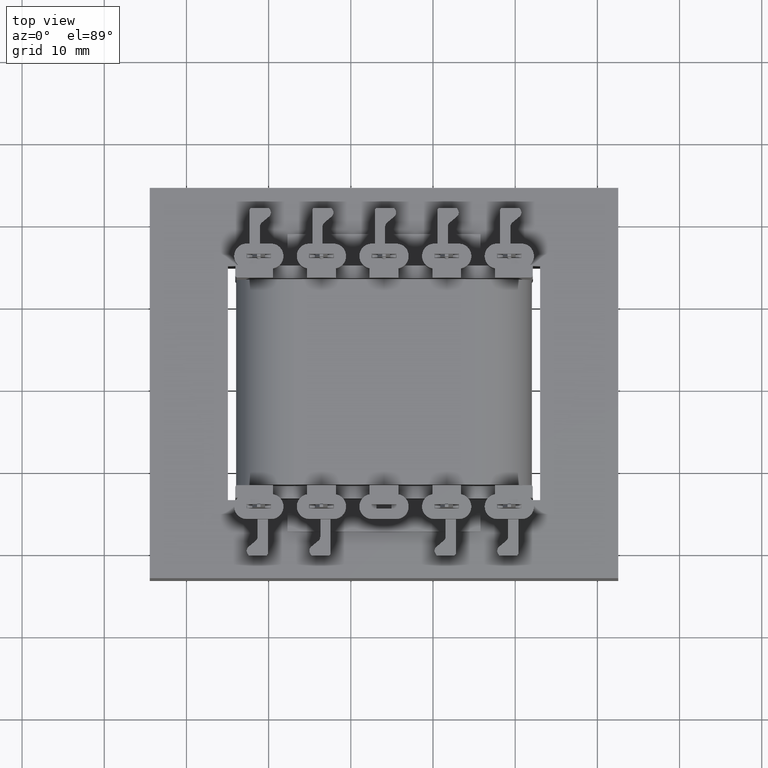
[diagram: clean part render]
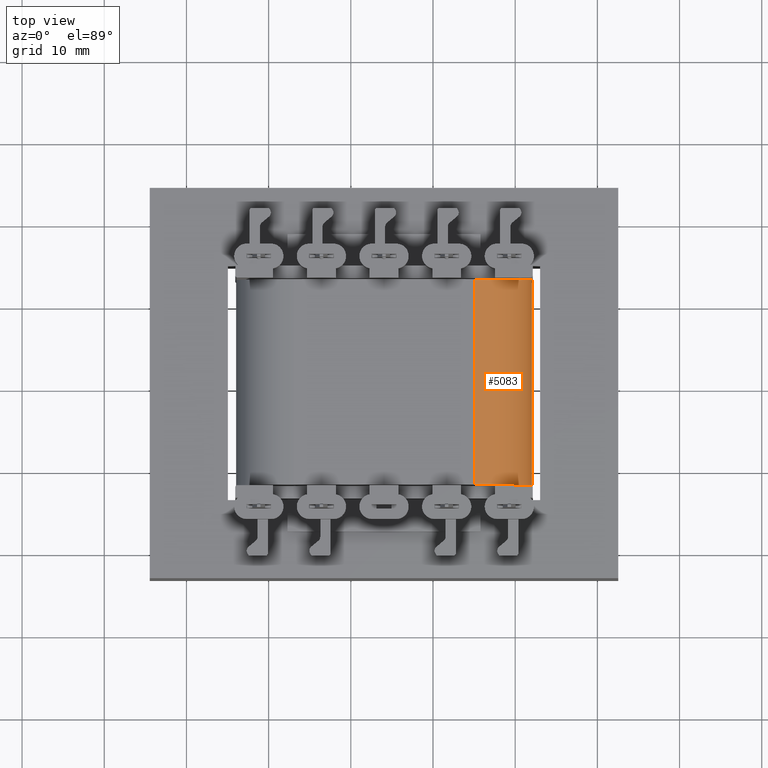
[diagram: same view with one face highlighted and labeled with its STEP entity id]
A machine part, top view. The second image highlights one B-rep face of the part: STEP entity #5083.
In plain terms, the highlighted cylindrical surface (partial cylindrical patch) has radius 7 mm, axis along (0, -1, 0).
Its self-contained STEP definition (entity closure, byte-faithful):
#591 = VECTOR ( 'NONE', #1461, 1000.000000000000000 ) ;
#773 = VERTEX_POINT ( 'NONE', #8085 ) ;
#777 = CARTESIAN_POINT ( 'NONE',  ( 11.00000000000001066, 0.000000000000000000, 10.64999999999999680 ) ) ;
#801 = CIRCLE ( 'NONE', #5277, 7.000000000000000000 ) ;
#968 = CARTESIAN_POINT ( 'NONE',  ( 11.00000000000001066, 25.00000000000000000, 10.64999999999999680 ) ) ;
#1314 = CARTESIAN_POINT ( 'NONE',  ( 18.00000000000001421, 0.000000000000000000, 10.64999999999999680 ) ) ;
#1461 = DIRECTION ( 'NONE',  ( -0.000000000000000000, 1.000000000000000000, -0.000000000000000000 ) ) ;
#1836 = DIRECTION ( 'NONE',  ( 0.000000000000000000, 0.000000000000000000, -1.000000000000000000 ) ) ;
#1973 = CYLINDRICAL_SURFACE ( 'NONE', #1980, 7.000000000000000000 ) ;
#1980 = AXIS2_PLACEMENT_3D ( 'NONE', #968, #2742, #10908 ) ;
#2165 = VERTEX_POINT ( 'NONE', #5315 ) ;
#2335 = CARTESIAN_POINT ( 'NONE',  ( 11.00000000000001066, 25.00000000000000000, 17.64999999999999503 ) ) ;
#2742 = DIRECTION ( 'NONE',  ( 0.000000000000000000, -1.000000000000000000, 0.000000000000000000 ) ) ;
#3359 = ORIENTED_EDGE ( 'NONE', *, *, #11323, .F. ) ;
#3896 = VECTOR ( 'NONE', #7296, 1000.000000000000000 ) ;
#4164 = DIRECTION ( 'NONE',  ( -0.000000000000000000, 1.000000000000000000, -0.000000000000000000 ) ) ;
#5064 = CARTESIAN_POINT ( 'NONE',  ( 18.00000000000001421, 25.00000000000000000, 10.64999999999999680 ) ) ;
#5083 = ADVANCED_FACE ( 'NONE', ( #11988 ), #1973, .T. ) ;
#5197 = VERTEX_POINT ( 'NONE', #11337 ) ;
#5277 = AXIS2_PLACEMENT_3D ( 'NONE', #7514, #4164, #1836 ) ;
#5278 = EDGE_LOOP ( 'NONE', ( #7063, #3359, #10382, #10921 ) ) ;
#5315 = CARTESIAN_POINT ( 'NONE',  ( 11.00000000000001066, 0.000000000000000000, 17.64999999999999503 ) ) ;
#5460 = DIRECTION ( 'NONE',  ( 0.000000000000000000, 0.000000000000000000, -1.000000000000000000 ) ) ;
#7063 = ORIENTED_EDGE ( 'NONE', *, *, #11040, .F. ) ;
#7296 = DIRECTION ( 'NONE',  ( 0.000000000000000000, -1.000000000000000000, 0.000000000000000000 ) ) ;
#7436 = EDGE_CURVE ( 'NONE', #14077, #2165, #8867, .T. ) ;
#7514 = CARTESIAN_POINT ( 'NONE',  ( 11.00000000000001066, 25.00000000000000000, 10.64999999999999680 ) ) ;
#8085 = CARTESIAN_POINT ( 'NONE',  ( 11.00000000000001066, 25.00000000000000000, 17.64999999999999503 ) ) ;
#8867 = CIRCLE ( 'NONE', #10743, 7.000000000000000000 ) ;
#9786 = EDGE_CURVE ( 'NONE', #5197, #14077, #12723, .T. ) ;
#10382 = ORIENTED_EDGE ( 'NONE', *, *, #7436, .F. ) ;
#10743 = AXIS2_PLACEMENT_3D ( 'NONE', #777, #12247, #5460 ) ;
#10908 = DIRECTION ( 'NONE',  ( 0.000000000000000000, 0.000000000000000000, -1.000000000000000000 ) ) ;
#10921 = ORIENTED_EDGE ( 'NONE', *, *, #9786, .F. ) ;
#11040 = EDGE_CURVE ( 'NONE', #773, #5197, #801, .T. ) ;
#11323 = EDGE_CURVE ( 'NONE', #2165, #773, #12354, .T. ) ;
#11337 = CARTESIAN_POINT ( 'NONE',  ( 18.00000000000001421, 25.00000000000000000, 10.64999999999999680 ) ) ;
#11988 = FACE_OUTER_BOUND ( 'NONE', #5278, .T. ) ;
#12247 = DIRECTION ( 'NONE',  ( 0.000000000000000000, -1.000000000000000000, 0.000000000000000000 ) ) ;
#12354 = LINE ( 'NONE', #2335, #591 ) ;
#12723 = LINE ( 'NONE', #5064, #3896 ) ;
#14077 = VERTEX_POINT ( 'NONE', #1314 ) ;